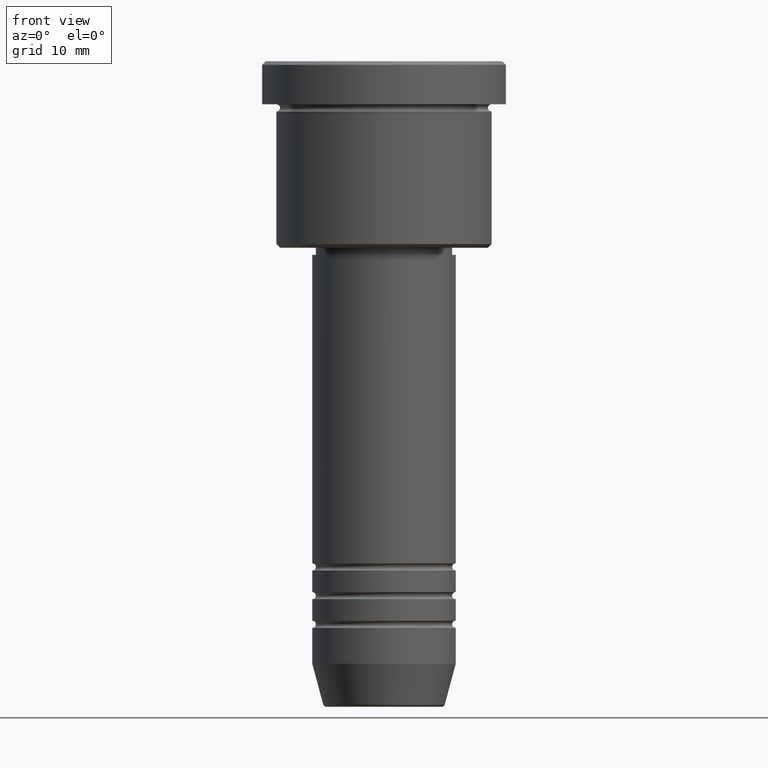
[diagram: clean part render]
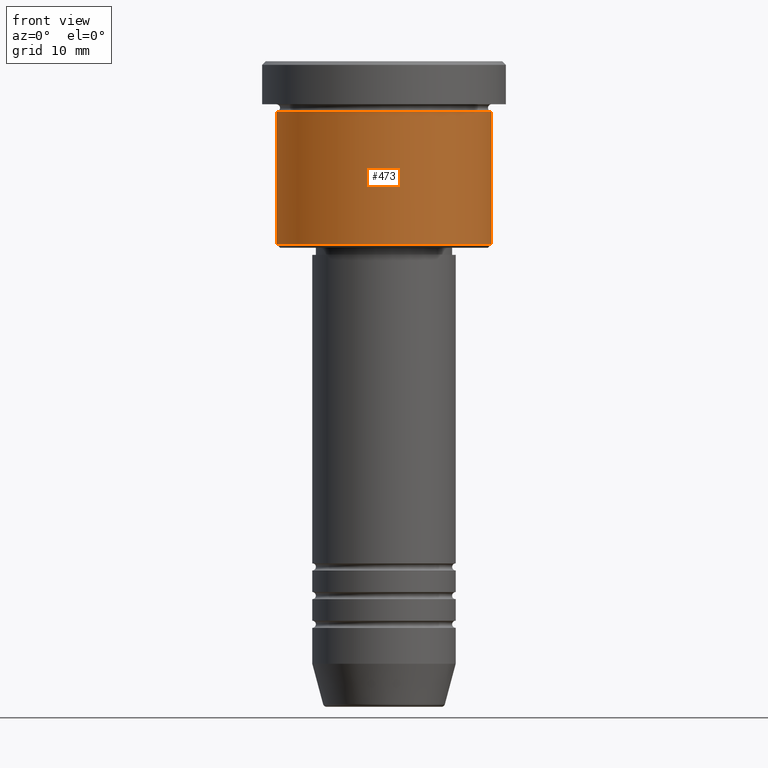
[diagram: same view with one face highlighted and labeled with its STEP entity id]
A machine part, front view. The second image highlights one B-rep face of the part: STEP entity #473.
In plain terms, the highlighted cylindrical surface (partial cylindrical patch) has radius 15 mm, axis along (-0, -0, 1).
Its self-contained STEP definition (entity closure, byte-faithful):
#13 = EDGE_CURVE ( 'NONE', #207, #784, #920, .T. ) ;
#53 = DIRECTION ( 'NONE',  ( -0.000000000000000000, -0.000000000000000000, 1.000000000000000000 ) ) ;
#67 = CARTESIAN_POINT ( 'NONE',  ( 15.00000000000000000, 0.000000000000000000, -6.999999999999995559 ) ) ;
#139 = CARTESIAN_POINT ( 'NONE',  ( 0.000000000000000000, 0.000000000000000000, 0.000000000000000000 ) ) ;
#167 = EDGE_LOOP ( 'NONE', ( #791, #1103, #391, #1129 ) ) ;
#172 = DIRECTION ( 'NONE',  ( -0.000000000000000000, -0.000000000000000000, 1.000000000000000000 ) ) ;
#207 = VERTEX_POINT ( 'NONE', #1038 ) ;
#223 = DIRECTION ( 'NONE',  ( -1.000000000000000000, 0.000000000000000000, 0.000000000000000000 ) ) ;
#224 = DIRECTION ( 'NONE',  ( 1.000000000000000000, 0.000000000000000000, 0.000000000000000000 ) ) ;
#234 = AXIS2_PLACEMENT_3D ( 'NONE', #746, #53, #224 ) ;
#291 = CARTESIAN_POINT ( 'NONE',  ( -15.00000000000000000, 1.836970198721029589E-15, 0.000000000000000000 ) ) ;
#340 = CARTESIAN_POINT ( 'NONE',  ( 15.00000000000000000, 0.000000000000000000, 0.000000000000000000 ) ) ;
#391 = ORIENTED_EDGE ( 'NONE', *, *, #753, .T. ) ;
#437 = DIRECTION ( 'NONE',  ( 1.000000000000000000, 0.000000000000000000, 0.000000000000000000 ) ) ;
#473 = ADVANCED_FACE ( 'NONE', ( #948 ), #578, .T. ) ;
#531 = CARTESIAN_POINT ( 'NONE',  ( 15.00000000000000000, 0.000000000000000000, -25.50000000000000355 ) ) ;
#537 = VECTOR ( 'NONE', #172, 1000.000000000000000 ) ;
#578 = CYLINDRICAL_SURFACE ( 'NONE', #850, 15.00000000000000000 ) ;
#632 = VERTEX_POINT ( 'NONE', #67 ) ;
#646 = DIRECTION ( 'NONE',  ( -0.000000000000000000, -0.000000000000000000, 1.000000000000000000 ) ) ;
#700 = CIRCLE ( 'NONE', #234, 15.00000000000000000 ) ;
#731 = VERTEX_POINT ( 'NONE', #1072 ) ;
#746 = CARTESIAN_POINT ( 'NONE',  ( 0.000000000000000000, 0.000000000000000000, -6.999999999999995559 ) ) ;
#753 = EDGE_CURVE ( 'NONE', #784, #632, #991, .T. ) ;
#784 = VERTEX_POINT ( 'NONE', #531 ) ;
#791 = ORIENTED_EDGE ( 'NONE', *, *, #846, .F. ) ;
#813 = VECTOR ( 'NONE', #646, 1000.000000000000000 ) ;
#836 = LINE ( 'NONE', #291, #813 ) ;
#846 = EDGE_CURVE ( 'NONE', #207, #731, #836, .T. ) ;
#850 = AXIS2_PLACEMENT_3D ( 'NONE', #139, #855, #437 ) ;
#855 = DIRECTION ( 'NONE',  ( -0.000000000000000000, -0.000000000000000000, 1.000000000000000000 ) ) ;
#920 = CIRCLE ( 'NONE', #1066, 15.00000000000000000 ) ;
#948 = FACE_OUTER_BOUND ( 'NONE', #167, .T. ) ;
#954 = DIRECTION ( 'NONE',  ( -0.000000000000000000, -0.000000000000000000, 1.000000000000000000 ) ) ;
#966 = CARTESIAN_POINT ( 'NONE',  ( 0.000000000000000000, 0.000000000000000000, -25.50000000000000355 ) ) ;
#991 = LINE ( 'NONE', #340, #537 ) ;
#1038 = CARTESIAN_POINT ( 'NONE',  ( -15.00000000000000000, 1.836970198721029589E-15, -25.50000000000000355 ) ) ;
#1066 = AXIS2_PLACEMENT_3D ( 'NONE', #966, #954, #223 ) ;
#1072 = CARTESIAN_POINT ( 'NONE',  ( -15.00000000000000000, 1.836970198721029589E-15, -6.999999999999995559 ) ) ;
#1103 = ORIENTED_EDGE ( 'NONE', *, *, #13, .T. ) ;
#1124 = EDGE_CURVE ( 'NONE', #731, #632, #700, .T. ) ;
#1129 = ORIENTED_EDGE ( 'NONE', *, *, #1124, .F. ) ;